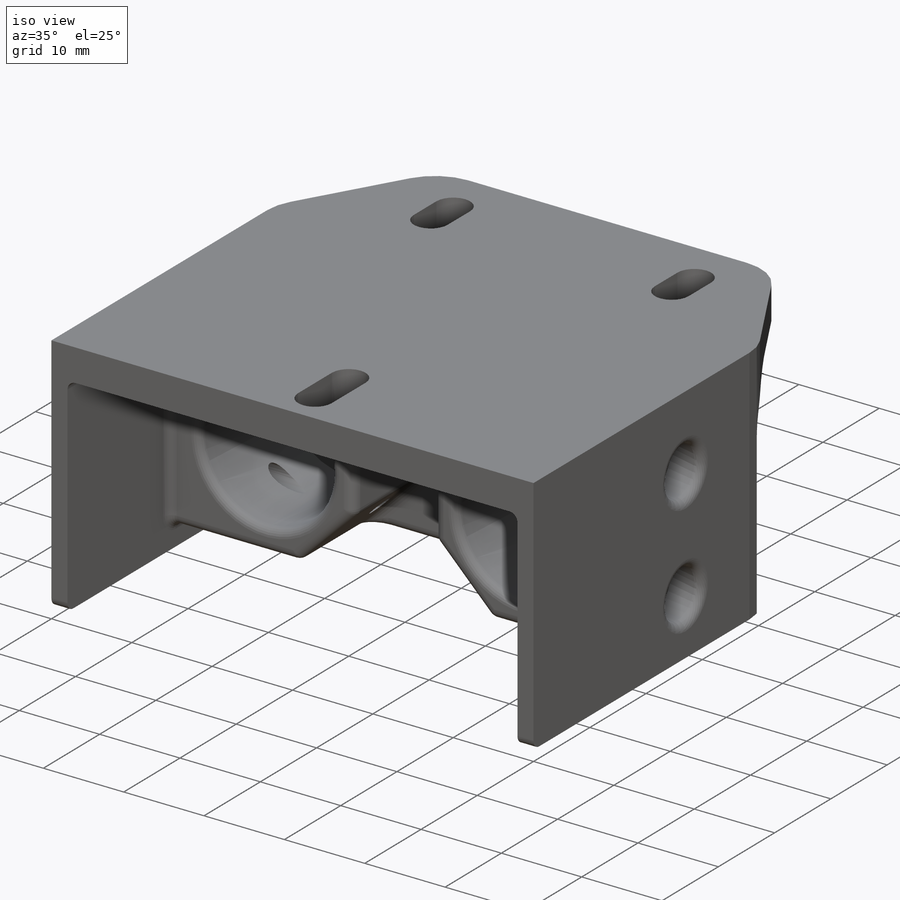
[diagram: iso view]
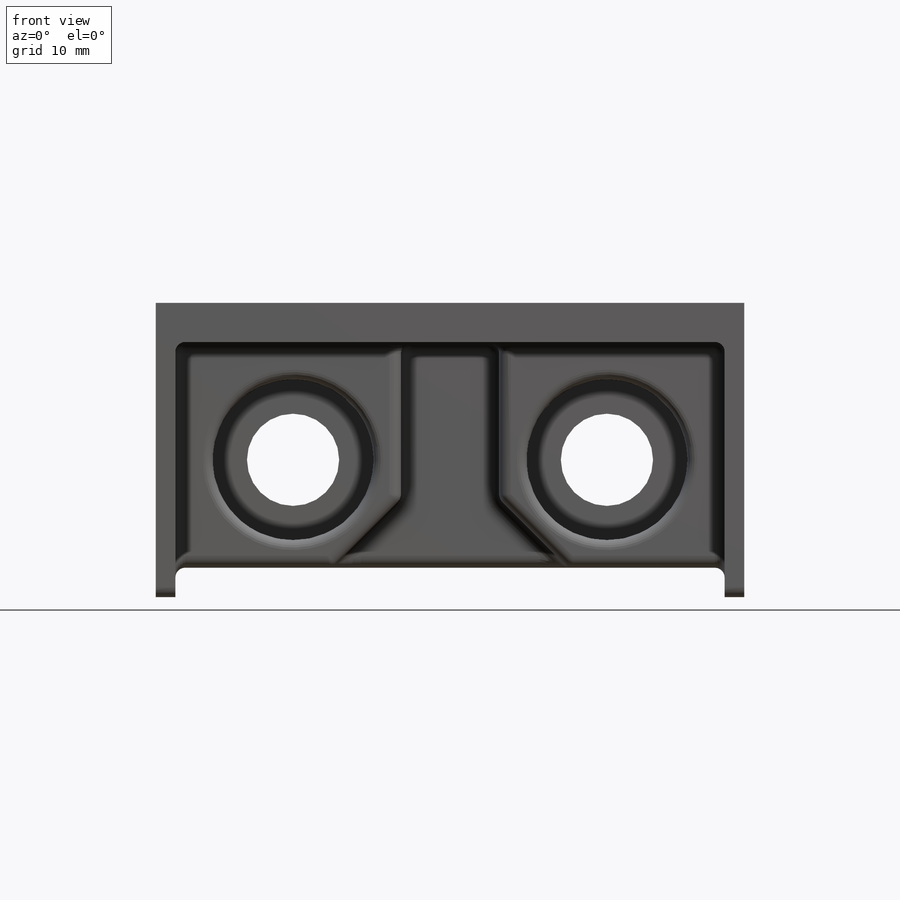
[diagram: front view]
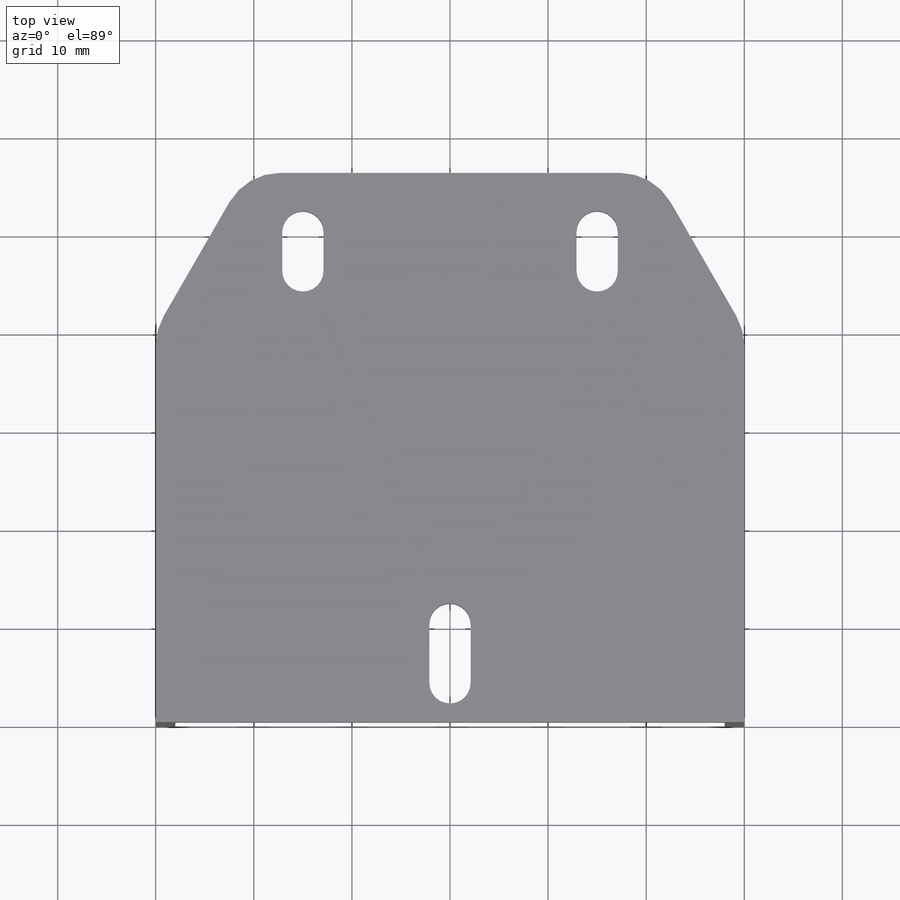
[diagram: top view]
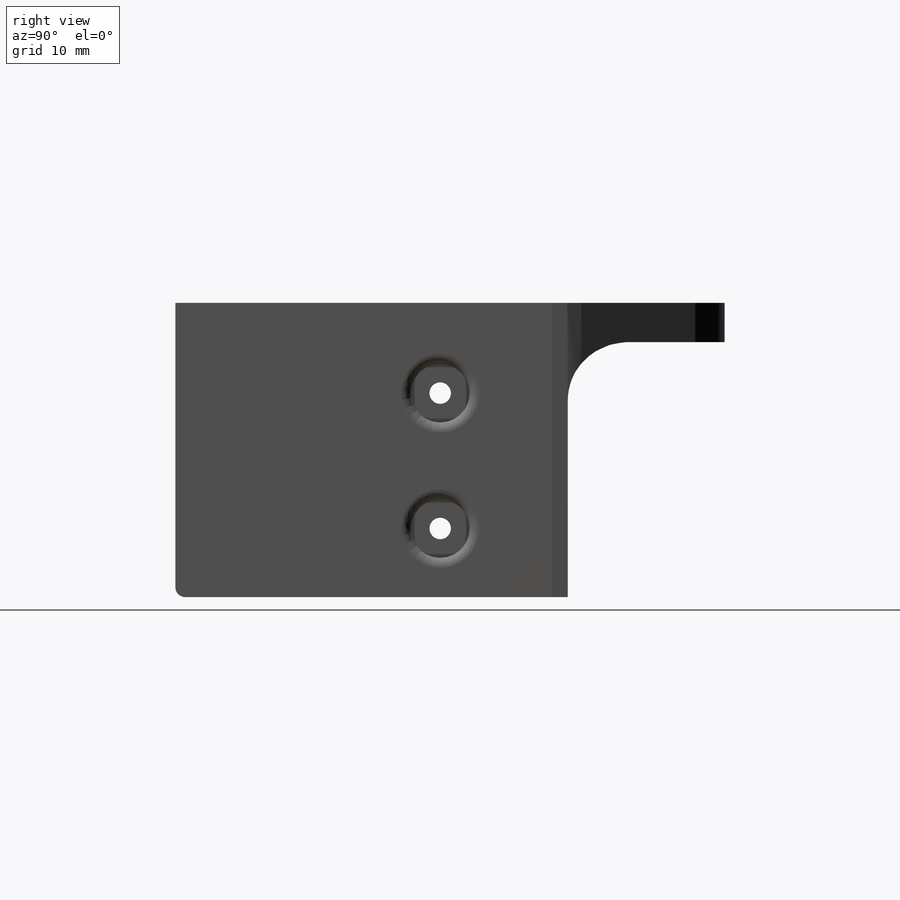
[diagram: right view]
SOLIDWORKS PART (.sldprt)
format: sldprt  version: not decoded by parser v0  size: 660,480 bytes
history: native  units: mm
features: sketch x15, cut_extrude x13, fillet x7, plane x3, extrude x2, material x1, chamfer x1 (+8 scaffold rows collapsed)
feature tree (50):
  scaffold x8  (default folders/planes/origin — collapsed)
  material  "Matériau <non spécifié>"
  plane  "Plan de face"
  plane  "Plan de dessus"
  plane  "Plan de droite"
  sketch  "Esquisse1"  dims[D1=60.0mm D2=30.0mm D3=30.0mm D4=15.0mm]
  extrude  "Boss.-Extru.1"  Depth=40mm
  sketch  "Esquisse2"  dims[c1.D1=9.4mm c1.D2=9.4mm c1.D4=8.6mm c1.D3=14.0mm c2.D4=14.0mm c2.D5=14.0mm c2.D6=14.0mm]
  cut_extrude  "Enlèv. mat.-Extru.1"  Depth=8mm
  sketch  "Esquisse3"  dims[D1=16.4mm D2=16.4mm]
  cut_extrude  "Enlèv. mat.-Extru.2"  Depth=7mm
  sketch  "Esquisse4"  dims[D1=2.0mm D2=2.0mm D3=4.0mm D4=0.0mm]
  cut_extrude  "Enlèv. mat.-Extru.3"  Depth=18mm
  sketch  "Esquisse8"  dims[D1=4.0mm]
  extrude  "Boss.-Extru.2"  Depth=16mm
  chamfer  "Chanfrein1"  Distance=16mm Angle=30deg
  sketch  "Esquisse9"  dims[D1=2.2mm D2=2.2mm D3=13.8mm D4=6.0mm D5=6.0mm D6=7.0mm]
  cut_extrude  "Enlèv. mat.-Extru.6"  [1 undecoded]
  sketch  "Esquisse10"  dims[D1=6.0mm D2=6.0mm]
  cut_extrude  "Enlèv. mat.-Extru.7"  Depth=4mm
  sketch  "Esquisse11"  dims[D1=6.0mm D2=6.0mm]
  cut_extrude  "Enlèv. mat.-Extru.8"  Depth=4mm
  fillet  "Congé6"  Radius=6mm
  fillet  "Congé9"  Radius=1mm
  sketch  "Esquisse12"  dims[D3=2.1mm D4=2.1mm D1=4.0mm D2=4.0mm D5=30.0mm D6=15.0mm D7=8.0mm D8=8.0mm]
  cut_extrude  "Enlèv. mat.-Extru.9"  [1 undecoded]
  sketch  "Esquisse13"  dims[D1=3.0mm D2=3.0mm D3=16.0mm D4=16.0mm D5=7.0mm D6=7.0mm D7=7.0mm]
  cut_extrude  "Enlèv. mat.-Extru.10"  Depth=12mm
  sketch  "Esquisse14"
  cut_extrude  "Enlèv. mat.-Extru.11"  [1 undecoded]
  sketch  "Esquisse15"
  cut_extrude  "Enlèv. mat.-Extru.12"  [1 undecoded]
  sketch  "Esquisse16"  dims[D1=6.0mm D2=6.0mm D3=4.0mm D4=6.0mm D5=6.0mm D6=4.0mm]
  cut_extrude  "Enlèv. mat.-Extru.13"  Depth=4mm
  fillet  "Congé10"  Radius=1mm
  fillet  "Congé11"  Radius=1.2mm
  fillet  "Congé12"  Radius=1mm
  fillet  "Congé13"  Radius=1mm
  sketch  "Esquisse17"  dims[D2=2.1mm D1=6.0mm D3=10.0mm]
  cut_extrude  "Enlèv. mat.-Extru.14"  [1 undecoded]
  sketch  "Esquisse18"  dims[D1=8.0mm D2=8.0mm D3=33.0mm D4=16.5mm D5=2.0mm D6=2.0mm]
  cut_extrude  "Enlèv. mat.-Extru.15"  Depth=4mm
  fillet  "Congé14"  Radius=1mm
decode coverage: 31 of 38 modeling features carry decoded parameters
note: 5 parameter values undecoded
summary: no parameter record found for 5 features
note: suppression state not decoded; provenance and decode notes live in map.json
